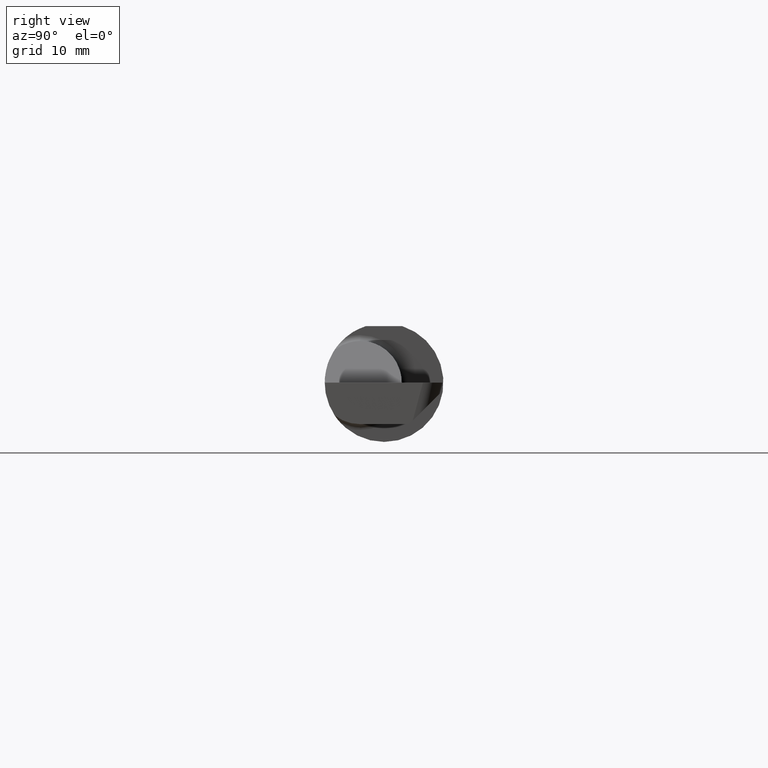
[diagram: clean part render]
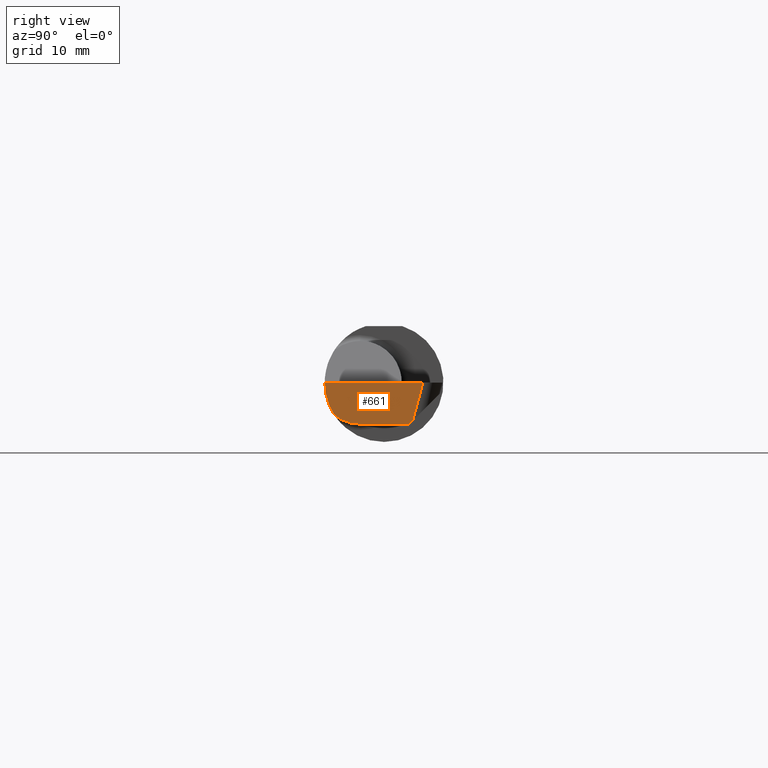
[diagram: same view with one face highlighted and labeled with its STEP entity id]
A machine part, right view. The second image highlights one B-rep face of the part: STEP entity #661.
In plain terms, the highlighted planar face has unit normal (-0.9992, 0.0349, 0.0175).
Its self-contained STEP definition (entity closure, byte-faithful):
#38 = CARTESIAN_POINT ( 'NONE',  ( 2.987584882537838826, -0.1008500000000001340, -0.1750000000000000722 ) ) ;
#47 = EDGE_CURVE ( 'NONE', #371, #794, #442, .T. ) ;
#61 = CARTESIAN_POINT ( 'NONE',  ( 2.985143277913549831, -0.1771157075472509501, -0.1623092683844331308 ) ) ;
#93 = DIRECTION ( 'NONE',  ( 0.02590004391968273034, 0.2587322210431824976, 0.9656017944882975268 ) ) ;
#124 = DIRECTION ( 'NONE',  ( -0.9992386149554828290, 0.03489418134010831979, 0.01745240643728358798 ) ) ;
#150 =( BOUNDED_CURVE ( )  B_SPLINE_CURVE ( 3, ( #373, #61, #759, #453 ),
 .UNSPECIFIED., .F., .F. ) 
 B_SPLINE_CURVE_WITH_KNOTS ( ( 4, 4 ),
 ( 0.4474640105399709245, 1.107026853503876085 ),
 .UNSPECIFIED. ) 
 CURVE ( )  GEOMETRIC_REPRESENTATION_ITEM ( )  RATIONAL_B_SPLINE_CURVE ( ( 1.000000000000000000, 0.9640754331822831702, 0.9640754331822831702, 1.000000000000000000 ) ) 
 REPRESENTATION_ITEM ( '' )  );
#179 = LINE ( 'NONE', #542, #752 ) ;
#196 = ORIENTED_EDGE ( 'NONE', *, *, #529, .F. ) ;
#199 = ORIENTED_EDGE ( 'NONE', *, *, #303, .T. ) ;
#207 = CARTESIAN_POINT ( 'NONE',  ( 2.999872990785927396, 0.1635087207221616878, 0.000000000000000000 ) ) ;
#212 = LINE ( 'NONE', #222, #645 ) ;
#222 = CARTESIAN_POINT ( 'NONE',  ( 2.999888224582237584, 0.1636609009256532465, 0.0005679442513367036422 ) ) ;
#255 = VECTOR ( 'NONE', #612, 39.37007874015748854 ) ;
#290 = DIRECTION ( 'NONE',  ( -0.03489949670249561930, -0.9993908270190959842, 1.222058880457094148E-16 ) ) ;
#303 = EDGE_CURVE ( 'NONE', #753, #621, #150, .T. ) ;
#354 = LINE ( 'NONE', #423, #431 ) ;
#356 = ORIENTED_EDGE ( 'NONE', *, *, #402, .T. ) ;
#371 = VERTEX_POINT ( 'NONE', #207 ) ;
#373 = CARTESIAN_POINT ( 'NONE',  ( 2.984481223124517690, -0.2080850024789289987, -0.1382955322609668025 ) ) ;
#390 = CARTESIAN_POINT ( 'NONE',  ( 2.984481223124517690, -0.2080850024789289987, -0.1382955322609668025 ) ) ;
#392 = AXIS2_PLACEMENT_3D ( 'NONE', #758, #124, #451 ) ;
#402 = EDGE_CURVE ( 'NONE', #430, #371, #212, .T. ) ;
#423 = CARTESIAN_POINT ( 'NONE',  ( 2.997444159268687347, 0.1562581541034807064, -0.1245661830446885138 ) ) ;
#430 = VERTEX_POINT ( 'NONE', #736 ) ;
#431 = VECTOR ( 'NONE', #609, 39.37007874015748854 ) ;
#436 = CARTESIAN_POINT ( 'NONE',  ( 2.984481223124517690, -0.2080850024789289987, -0.1382955322609668025 ) ) ;
#442 = LINE ( 'NONE', #507, #255 ) ;
#451 = DIRECTION ( 'NONE',  ( -0.03489949670249561930, -0.9993908270190959842, 0.000000000000000000 ) ) ;
#453 = CARTESIAN_POINT ( 'NONE',  ( 2.987584882537838826, -0.1008500000000001340, -0.1750000000000000722 ) ) ;
#466 = CARTESIAN_POINT ( 'NONE',  ( 2.985438186182187259, -0.2498499999999999888, 0.000000000000000000 ) ) ;
#501 = CARTESIAN_POINT ( 'NONE',  ( 2.984244149176539018, -0.2355204011147991605, -0.09701513151466764628 ) ) ;
#504 = CARTESIAN_POINT ( 'NONE',  ( 2.985438186182187259, -0.2498499999999999888, 0.000000000000000000 ) ) ;
#507 = CARTESIAN_POINT ( 'NONE',  ( 2.999952099699010333, 0.1657741035941333874, 0.000000000000000000 ) ) ;
#508 = CARTESIAN_POINT ( 'NONE',  ( 2.994802109425249714, 0.1058243371481696615, -0.1750000000000001277 ) ) ;
#520 =( BOUNDED_CURVE ( )  B_SPLINE_CURVE ( 3, ( #436, #501, #754, #504 ),
 .UNSPECIFIED., .F., .F. ) 
 B_SPLINE_CURVE_WITH_KNOTS ( ( 4, 4 ),
 ( 6.160376845738948504, 6.746954780470606039 ),
 .UNSPECIFIED. ) 
 CURVE ( )  GEOMETRIC_REPRESENTATION_ITEM ( )  RATIONAL_B_SPLINE_CURVE ( ( 1.000000000000000000, 0.9715321379117538569, 0.9715321379117538569, 1.000000000000000000 ) ) 
 REPRESENTATION_ITEM ( '' )  );
#529 = EDGE_CURVE ( 'NONE', #638, #621, #179, .T. ) ;
#542 = CARTESIAN_POINT ( 'NONE',  ( 2.988089862307433453, -0.08638927141514805841, -0.1750000000000000722 ) ) ;
#562 = PLANE ( 'NONE',  #392 ) ;
#603 = ORIENTED_EDGE ( 'NONE', *, *, #610, .F. ) ;
#609 = DIRECTION ( 'NONE',  ( -0.03701744261649914797, -0.7066221440565398915, -0.7066221440565477740 ) ) ;
#610 = EDGE_CURVE ( 'NONE', #430, #638, #354, .T. ) ;
#612 = DIRECTION ( 'NONE',  ( -0.03489949670249561930, -0.9993908270190959842, 0.000000000000000000 ) ) ;
#613 = ORIENTED_EDGE ( 'NONE', *, *, #651, .F. ) ;
#621 = VERTEX_POINT ( 'NONE', #38 ) ;
#636 = ORIENTED_EDGE ( 'NONE', *, *, #47, .T. ) ;
#638 = VERTEX_POINT ( 'NONE', #508 ) ;
#645 = VECTOR ( 'NONE', #93, 39.37007874015747433 ) ;
#651 = EDGE_CURVE ( 'NONE', #753, #794, #520, .T. ) ;
#661 = ADVANCED_FACE ( 'NONE', ( #695 ), #562, .F. ) ;
#681 = EDGE_LOOP ( 'NONE', ( #603, #356, #636, #613, #199, #196 ) ) ;
#695 = FACE_OUTER_BOUND ( 'NONE', #681, .T. ) ;
#736 = CARTESIAN_POINT ( 'NONE',  ( 2.995574489715794542, 0.1205682248496117576, -0.1602561122985578790 ) ) ;
#752 = VECTOR ( 'NONE', #290, 39.37007874015748143 ) ;
#753 = VERTEX_POINT ( 'NONE', #390 ) ;
#754 = CARTESIAN_POINT ( 'NONE',  ( 2.984572483848591862, -0.2498499999999999610, -0.04956584089959709116 ) ) ;
#758 = CARTESIAN_POINT ( 'NONE',  ( 2.999952099699010333, 0.1657741035941333874, 0.000000000000000000 ) ) ;
#759 = CARTESIAN_POINT ( 'NONE',  ( 2.986216381845219203, -0.1400387324517231580, -0.1750000000000000167 ) ) ;
#794 = VERTEX_POINT ( 'NONE', #466 ) ;